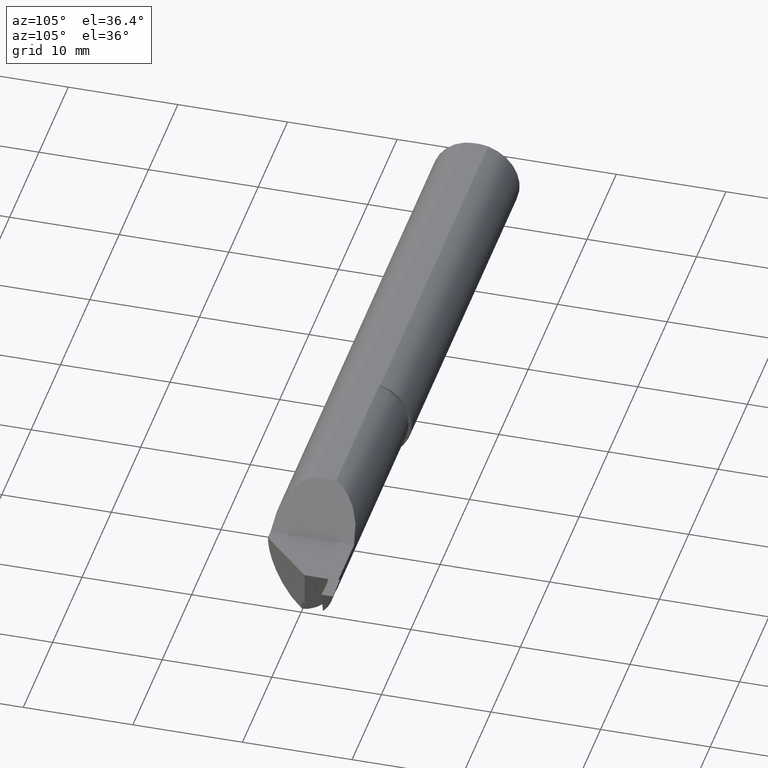
[diagram: clean part render]
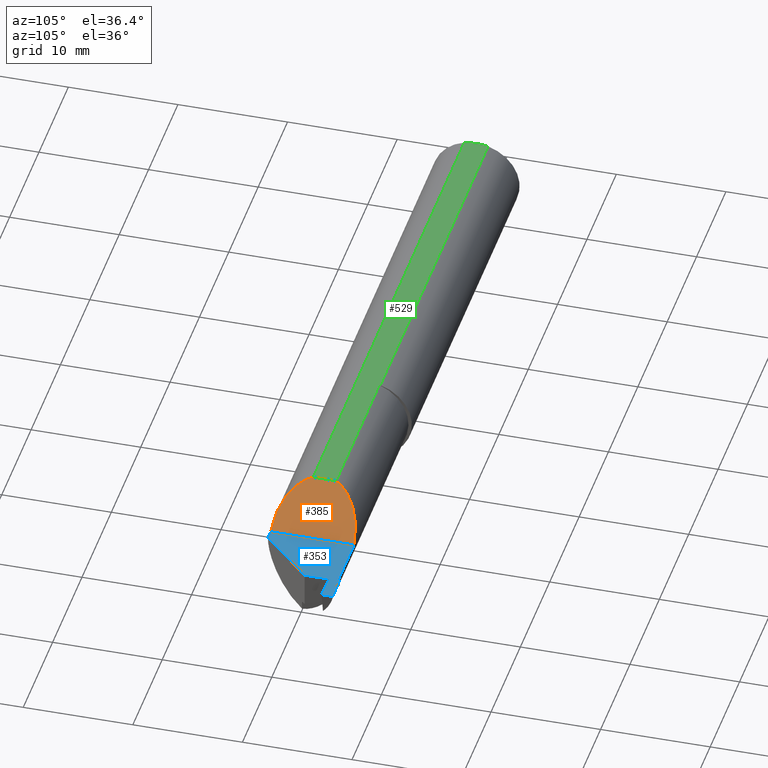
[diagram: same view with three faces highlighted in distinct colors, each labeled with its STEP entity id]
A machine part, auxiliary view with three faces highlighted in distinct colors.
Their STEP definitions:

[orange] entity #385 — the highlighted planar face has unit normal (0.7071, -0, 0.7071).
#8 = CARTESIAN_POINT ( 'NONE',  ( 2.120766287695780239, 0.1440559360311357284, 0.06933371230421984943 ) ) ;
#9 = EDGE_CURVE ( 'NONE', #305, #440, #185, .T. ) ;
#57 = ORIENTED_EDGE ( 'NONE', *, *, #210, .T. ) ;
#82 =( BOUNDED_CURVE ( )  B_SPLINE_CURVE ( 3, ( #401, #8, #714, #396 ),
 .UNSPECIFIED., .F., .F. ) 
 B_SPLINE_CURVE_WITH_KNOTS ( ( 4, 4 ),
 ( 4.713013980425380112, 5.929564525929065688 ),
 .UNSPECIFIED. ) 
 CURVE ( )  GEOMETRIC_REPRESENTATION_ITEM ( )  RATIONAL_B_SPLINE_CURVE ( ( 1.000000000000000000, 0.8804232255846621280, 0.8804232255846621280, 1.000000000000000000 ) ) 
 REPRESENTATION_ITEM ( '' )  );
#108 = DIRECTION ( 'NONE',  ( -0.000000000000000000, 1.000000000000000000, 0.000000000000000000 ) ) ;
#109 = DIRECTION ( 'NONE',  ( 0.000000000000000000, -1.000000000000000000, 0.000000000000000000 ) ) ;
#153 = ORIENTED_EDGE ( 'NONE', *, *, #9, .F. ) ;
#174 = CARTESIAN_POINT ( 'NONE',  ( 2.039999999999999591, 0.04286257108480545641, 0.1500999999999999834 ) ) ;
#184 = CARTESIAN_POINT ( 'NONE',  ( 2.059871508359184311, -0.1124504032942231085, 0.1302284916408148197 ) ) ;
#185 = LINE ( 'NONE', #621, #502 ) ;
#210 = EDGE_CURVE ( 'NONE', #305, #738, #82, .T. ) ;
#302 = DIRECTION ( 'NONE',  ( 0.7071067811865462405, -0.000000000000000000, 0.7071067811865487940 ) ) ;
#305 = VERTEX_POINT ( 'NONE', #544 ) ;
#350 = EDGE_LOOP ( 'NONE', ( #153, #57, #404, #799 ) ) ;
#379 = EDGE_CURVE ( 'NONE', #440, #562, #538, .T. ) ;
#382 = VECTOR ( 'NONE', #108, 39.37007874015748143 ) ;
#385 = ADVANCED_FACE ( 'NONE', ( #437 ), #424, .T. ) ;
#396 = CARTESIAN_POINT ( 'NONE',  ( 2.039999999999999591, 0.03950672882812752973, 0.1500999999999999834 ) ) ;
#401 = CARTESIAN_POINT ( 'NONE',  ( 2.189999999999999947, 0.1440992071097771665, 9.999999999993541345E-05 ) ) ;
#404 = ORIENTED_EDGE ( 'NONE', *, *, #477, .F. ) ;
#424 = PLANE ( 'NONE',  #545 ) ;
#429 = CARTESIAN_POINT ( 'NONE',  ( 2.189999999999999947, -0.1560999679692472164, 9.999999999982123341E-05 ) ) ;
#437 = FACE_OUTER_BOUND ( 'NONE', #350, .T. ) ;
#440 = VERTEX_POINT ( 'NONE', #429 ) ;
#477 = EDGE_CURVE ( 'NONE', #562, #738, #685, .T. ) ;
#502 = VECTOR ( 'NONE', #109, 39.37007874015748143 ) ;
#538 =( BOUNDED_CURVE ( )  B_SPLINE_CURVE ( 3, ( #693, #822, #184, #625 ),
 .UNSPECIFIED., .F., .T. ) 
 B_SPLINE_CURVE_WITH_KNOTS ( ( 4, 4 ),
 ( 4.713029595418896101, 6.005028202575334539 ),
 .UNSPECIFIED. ) 
 CURVE ( )  GEOMETRIC_REPRESENTATION_ITEM ( )  RATIONAL_B_SPLINE_CURVE ( ( 1.000000000000000000, 0.8656657255323875200, 0.8656657255323875200, 1.000000000000000000 ) ) 
 REPRESENTATION_ITEM ( '' )  );
#544 = CARTESIAN_POINT ( 'NONE',  ( 2.189999999999999947, 0.1440992071097771665, 9.999999999993541345E-05 ) ) ;
#545 = AXIS2_PLACEMENT_3D ( 'NONE', #807, #302, #680 ) ;
#562 = VERTEX_POINT ( 'NONE', #574 ) ;
#574 = CARTESIAN_POINT ( 'NONE',  ( 2.039999999999999591, -0.04286257108480545641, 0.1500999999999999834 ) ) ;
#621 = CARTESIAN_POINT ( 'NONE',  ( 2.189999999999999947, -0.04286257108480570621, 9.999999999993541345E-05 ) ) ;
#625 = CARTESIAN_POINT ( 'NONE',  ( 2.039999999999999591, -0.04286257108480545641, 0.1500999999999999834 ) ) ;
#680 = DIRECTION ( 'NONE',  ( 0.7071067811865487940, 0.000000000000000000, -0.7071067811865462405 ) ) ;
#685 = LINE ( 'NONE', #174, #382 ) ;
#693 = CARTESIAN_POINT ( 'NONE',  ( 2.189999999999999947, -0.1560999679692472164, 9.999999999982123341E-05 ) ) ;
#714 = CARTESIAN_POINT ( 'NONE',  ( 2.063975418773851711, 0.1044566178690503194, 0.1261245812261482802 ) ) ;
#725 = CARTESIAN_POINT ( 'NONE',  ( 2.039999999999999591, 0.03950672882812752973, 0.1500999999999999834 ) ) ;
#738 = VERTEX_POINT ( 'NONE', #725 ) ;
#799 = ORIENTED_EDGE ( 'NONE', *, *, #379, .F. ) ;
#807 = CARTESIAN_POINT ( 'NONE',  ( 2.189999999999999947, 0.2560999999999999943, 9.999999999993541345E-05 ) ) ;
#822 = CARTESIAN_POINT ( 'NONE',  ( 2.117630523791210084, -0.1560536069884282118, 0.07246947620879010121 ) ) ;

[blue] entity #353 — the highlighted planar face has unit normal (0, 0, -1).
#3 = CARTESIAN_POINT ( 'NONE',  ( 2.405000000000000249, 0.02390000000000001845, 0.000000000000000000 ) ) ;
#19 = VECTOR ( 'NONE', #241, 39.37007874015748143 ) ;
#21 = FACE_OUTER_BOUND ( 'NONE', #552, .T. ) ;
#22 = VERTEX_POINT ( 'NONE', #755 ) ;
#24 = DIRECTION ( 'NONE',  ( -1.000000000000000000, 0.000000000000000000, -0.000000000000000000 ) ) ;
#34 = VERTEX_POINT ( 'NONE', #630 ) ;
#41 = CARTESIAN_POINT ( 'NONE',  ( 2.405000000000000249, 0.1036166103841832803, 0.000000000000000000 ) ) ;
#46 = ORIENTED_EDGE ( 'NONE', *, *, #674, .F. ) ;
#49 = VECTOR ( 'NONE', #482, 39.37007874015748143 ) ;
#64 = LINE ( 'NONE', #518, #132 ) ;
#66 = CARTESIAN_POINT ( 'NONE',  ( 2.397000000000000242, 0.1470992383597802822, 0.000000000000000000 ) ) ;
#85 = PLANE ( 'NONE',  #451 ) ;
#89 = LINE ( 'NONE', #151, #49 ) ;
#93 = EDGE_CURVE ( 'NONE', #606, #224, #378, .T. ) ;
#95 = ORIENTED_EDGE ( 'NONE', *, *, #659, .F. ) ;
#99 = LINE ( 'NONE', #613, #344 ) ;
#101 = CARTESIAN_POINT ( 'NONE',  ( 2.500000000000000000, 0.1510992383597803135, 3.841661241090370459E-17 ) ) ;
#106 = CARTESIAN_POINT ( 'NONE',  ( 2.413000000000000256, 0.1036166103841832803, 0.000000000000000000 ) ) ;
#132 = VECTOR ( 'NONE', #522, 39.37007874015748143 ) ;
#150 = DIRECTION ( 'NONE',  ( 0.000000000000000000, 0.000000000000000000, 1.000000000000000000 ) ) ;
#151 = CARTESIAN_POINT ( 'NONE',  ( 1.460000000000000187, 0.1440992383597803073, 0.000000000000000000 ) ) ;
#163 = ORIENTED_EDGE ( 'NONE', *, *, #493, .T. ) ;
#188 = CARTESIAN_POINT ( 'NONE',  ( 2.400000000000000355, 0.1470992383597802822, 0.000000000000000000 ) ) ;
#190 = ORIENTED_EDGE ( 'NONE', *, *, #93, .F. ) ;
#195 = DIRECTION ( 'NONE',  ( -0.9998476951563912696, 0.01745240643727517110, -0.000000000000000000 ) ) ;
#206 = LINE ( 'NONE', #400, #438 ) ;
#220 = VERTEX_POINT ( 'NONE', #389 ) ;
#224 = VERTEX_POINT ( 'NONE', #457 ) ;
#230 = DIRECTION ( 'NONE',  ( 0.000000000000000000, 1.000000000000000000, 0.000000000000000000 ) ) ;
#237 = VECTOR ( 'NONE', #195, 39.37007874015748854 ) ;
#241 = DIRECTION ( 'NONE',  ( -0.7071067811865486830, -0.7071067811865464625, 0.000000000000000000 ) ) ;
#255 = CIRCLE ( 'NONE', #468, 0.003000000000000213867 ) ;
#257 = CARTESIAN_POINT ( 'NONE',  ( 2.399999999999999911, 0.1493537318669599934, 0.000000000000000000 ) ) ;
#260 = DIRECTION ( 'NONE',  ( -1.000000000000000000, 0.000000000000000000, 0.000000000000000000 ) ) ;
#266 = CARTESIAN_POINT ( 'NONE',  ( 2.189999999999999947, -0.2560999999999999943, 0.000000000000000000 ) ) ;
#270 = DIRECTION ( 'NONE',  ( 0.000000000000000000, 1.000000000000000000, 0.000000000000000000 ) ) ;
#284 = CARTESIAN_POINT ( 'NONE',  ( 2.189999999999999947, -0.1560999999999999888, 0.000000000000000000 ) ) ;
#289 = ORIENTED_EDGE ( 'NONE', *, *, #697, .F. ) ;
#295 = VERTEX_POINT ( 'NONE', #101 ) ;
#300 = DIRECTION ( 'NONE',  ( 4.086873660734437432E-17, 1.000000000000000000, 0.000000000000000000 ) ) ;
#312 = LINE ( 'NONE', #804, #769 ) ;
#327 = EDGE_CURVE ( 'NONE', #34, #220, #89, .T. ) ;
#344 = VECTOR ( 'NONE', #300, 39.37007874015748143 ) ;
#353 = ADVANCED_FACE ( 'NONE', ( #21 ), #85, .F. ) ;
#358 = VERTEX_POINT ( 'NONE', #284 ) ;
#371 = DIRECTION ( 'NONE',  ( -0.000000000000000000, -0.000000000000000000, 1.000000000000000000 ) ) ;
#372 = VERTEX_POINT ( 'NONE', #569 ) ;
#378 = LINE ( 'NONE', #639, #19 ) ;
#386 = VECTOR ( 'NONE', #526, 39.37007874015748143 ) ;
#389 = CARTESIAN_POINT ( 'NONE',  ( 2.397000000000000242, 0.1440992383597803073, 0.000000000000000000 ) ) ;
#391 = CARTESIAN_POINT ( 'NONE',  ( 2.413139619251498225, 0.1116153919454344334, 0.000000000000000000 ) ) ;
#399 = AXIS2_PLACEMENT_3D ( 'NONE', #106, #150, #722 ) ;
#400 = CARTESIAN_POINT ( 'NONE',  ( 2.405000000000000249, 0.1036166103841832803, 0.000000000000000000 ) ) ;
#425 = ORIENTED_EDGE ( 'NONE', *, *, #629, .F. ) ;
#428 = ORIENTED_EDGE ( 'NONE', *, *, #327, .F. ) ;
#438 = VECTOR ( 'NONE', #701, 39.37007874015748143 ) ;
#445 = LINE ( 'NONE', #266, #520 ) ;
#451 = AXIS2_PLACEMENT_3D ( 'NONE', #665, #603, #24 ) ;
#457 = CARTESIAN_POINT ( 'NONE',  ( 2.224999999999999645, -0.1560999999999999888, 0.000000000000000000 ) ) ;
#468 = AXIS2_PLACEMENT_3D ( 'NONE', #66, #371, #260 ) ;
#474 = VERTEX_POINT ( 'NONE', #188 ) ;
#480 = ORIENTED_EDGE ( 'NONE', *, *, #664, .F. ) ;
#482 = DIRECTION ( 'NONE',  ( 1.000000000000000000, -4.086873660734437432E-17, 0.000000000000000000 ) ) ;
#493 = EDGE_CURVE ( 'NONE', #22, #295, #312, .T. ) ;
#510 = LINE ( 'NONE', #646, #386 ) ;
#518 = CARTESIAN_POINT ( 'NONE',  ( 2.610070508499388708, 0.1530205262323175441, 0.000000000000000000 ) ) ;
#520 = VECTOR ( 'NONE', #270, 39.37007874015748143 ) ;
#521 = ORIENTED_EDGE ( 'NONE', *, *, #592, .F. ) ;
#522 = DIRECTION ( 'NONE',  ( 0.9998476951563914916, 0.01745240643726934937, 0.000000000000000000 ) ) ;
#526 = DIRECTION ( 'NONE',  ( -1.000000000000000000, -0.000000000000000000, -0.000000000000000000 ) ) ;
#552 = EDGE_LOOP ( 'NONE', ( #778, #733, #428, #95, #425, #190, #480, #289, #521, #163, #46 ) ) ;
#569 = CARTESIAN_POINT ( 'NONE',  ( 2.413139705841341964, 0.1116153904340031061, -1.280553747030123384E-17 ) ) ;
#578 = LINE ( 'NONE', #391, #237 ) ;
#592 = EDGE_CURVE ( 'NONE', #22, #372, #578, .T. ) ;
#601 = CIRCLE ( 'NONE', #399, 0.008000000000000024453 ) ;
#603 = DIRECTION ( 'NONE',  ( 0.000000000000000000, 0.000000000000000000, -1.000000000000000000 ) ) ;
#606 = VERTEX_POINT ( 'NONE', #3 ) ;
#613 = CARTESIAN_POINT ( 'NONE',  ( 2.399999999999999911, -0.2560999999999999943, 0.000000000000000000 ) ) ;
#617 = VERTEX_POINT ( 'NONE', #257 ) ;
#629 = EDGE_CURVE ( 'NONE', #224, #358, #510, .T. ) ;
#630 = CARTESIAN_POINT ( 'NONE',  ( 2.189999999999999947, 0.1440992383597802795, 0.000000000000000000 ) ) ;
#639 = CARTESIAN_POINT ( 'NONE',  ( 2.405000000000000249, 0.02390000000000001845, 0.000000000000000000 ) ) ;
#646 = CARTESIAN_POINT ( 'NONE',  ( 0.000000000000000000, -0.1560999999999999888, 0.000000000000000000 ) ) ;
#659 = EDGE_CURVE ( 'NONE', #358, #34, #445, .T. ) ;
#664 = EDGE_CURVE ( 'NONE', #751, #606, #206, .T. ) ;
#665 = CARTESIAN_POINT ( 'NONE',  ( 2.189999999999999947, -0.2560999999999999943, 0.000000000000000000 ) ) ;
#674 = EDGE_CURVE ( 'NONE', #617, #295, #64, .T. ) ;
#697 = EDGE_CURVE ( 'NONE', #372, #751, #601, .T. ) ;
#701 = DIRECTION ( 'NONE',  ( 0.000000000000000000, -1.000000000000000000, 0.000000000000000000 ) ) ;
#722 = DIRECTION ( 'NONE',  ( -1.000000000000000000, 0.000000000000000000, 0.000000000000000000 ) ) ;
#733 = ORIENTED_EDGE ( 'NONE', *, *, #829, .F. ) ;
#751 = VERTEX_POINT ( 'NONE', #41 ) ;
#755 = CARTESIAN_POINT ( 'NONE',  ( 2.500000000000000000, 0.1100992383597803603, 0.000000000000000000 ) ) ;
#757 = EDGE_CURVE ( 'NONE', #474, #617, #99, .T. ) ;
#769 = VECTOR ( 'NONE', #230, 39.37007874015748143 ) ;
#778 = ORIENTED_EDGE ( 'NONE', *, *, #757, .F. ) ;
#804 = CARTESIAN_POINT ( 'NONE',  ( 2.500000000000000000, -0.2560999999999999943, 0.000000000000000000 ) ) ;
#829 = EDGE_CURVE ( 'NONE', #220, #474, #255, .T. ) ;

[green] entity #529 — the highlighted planar face has unit normal (0, 0, -1).
#4 = CARTESIAN_POINT ( 'NONE',  ( 0.01499999999999970281, 0.04286257108480545641, 0.1500999999999999834 ) ) ;
#10 = CARTESIAN_POINT ( 'NONE',  ( 1.460000000000000187, 0.04286257108480545641, 0.1500999999999999834 ) ) ;
#37 = CARTESIAN_POINT ( 'NONE',  ( 0.01308010236197408062, -0.03587054952121924989, 0.1500999999999999834 ) ) ;
#65 = CARTESIAN_POINT ( 'NONE',  ( 0.01158539406439744110, 0.02885992225672986272, 0.1500999999999999834 ) ) ;
#71 = VERTEX_POINT ( 'NONE', #699 ) ;
#74 = LINE ( 'NONE', #268, #354 ) ;
#78 = DIRECTION ( 'NONE',  ( 0.000000000000000000, 0.000000000000000000, -1.000000000000000000 ) ) ;
#81 = DIRECTION ( 'NONE',  ( -1.000000000000000000, -0.000000000000000000, -0.000000000000000000 ) ) ;
#108 = DIRECTION ( 'NONE',  ( -0.000000000000000000, 1.000000000000000000, 0.000000000000000000 ) ) ;
#121 = EDGE_CURVE ( 'NONE', #127, #476, #167, .T. ) ;
#125 = FACE_OUTER_BOUND ( 'NONE', #696, .T. ) ;
#127 = VERTEX_POINT ( 'NONE', #4 ) ;
#130 = EDGE_CURVE ( 'NONE', #298, #738, #591, .T. ) ;
#145 = B_SPLINE_CURVE_WITH_KNOTS ( 'NONE', 3,
 ( #533, #402, #166, #304, #37, #530 ),
 .UNSPECIFIED., .F., .F.,
 ( 4, 2, 4 ),
 ( 0.004962684357525391429, 0.005507153342650035824, 0.006051622327774681086 ),
 .UNSPECIFIED. ) ;
#156 = CARTESIAN_POINT ( 'NONE',  ( 1.460000000000000187, 0.03950672882812750197, 0.1500999999999999834 ) ) ;
#166 = CARTESIAN_POINT ( 'NONE',  ( 0.009526811708237869006, -0.01443825677426632814, 0.1500999999999999834 ) ) ;
#167 = B_SPLINE_CURVE_WITH_KNOTS ( 'NONE', 3,
 ( #430, #687, #65, #575, #421, #652 ),
 .UNSPECIFIED., .F., .F.,
 ( 4, 2, 4 ),
 ( 0.003872957156311482643, 0.004417820756918437036, 0.004962684357525391429 ),
 .UNSPECIFIED. ) ;
#170 = CARTESIAN_POINT ( 'NONE',  ( 0.008999999999998765932, 6.845491512164019265E-17, 0.1500999999999999834 ) ) ;
#172 = CARTESIAN_POINT ( 'NONE',  ( 0.000000000000000000, 0.04286257108480545641, 0.1500999999999999834 ) ) ;
#174 = CARTESIAN_POINT ( 'NONE',  ( 2.039999999999999591, 0.04286257108480545641, 0.1500999999999999834 ) ) ;
#178 = ORIENTED_EDGE ( 'NONE', *, *, #788, .F. ) ;
#196 = DIRECTION ( 'NONE',  ( 1.000000000000000000, -4.086873660734437432E-17, 0.000000000000000000 ) ) ;
#199 = PLANE ( 'NONE',  #797 ) ;
#219 = EDGE_CURVE ( 'NONE', #562, #71, #74, .T. ) ;
#268 = CARTESIAN_POINT ( 'NONE',  ( 0.000000000000000000, -0.04286257108480545641, 0.1500999999999999834 ) ) ;
#291 = ORIENTED_EDGE ( 'NONE', *, *, #477, .T. ) ;
#296 = LINE ( 'NONE', #172, #410 ) ;
#298 = VERTEX_POINT ( 'NONE', #156 ) ;
#304 = CARTESIAN_POINT ( 'NONE',  ( 0.01156122974740472244, -0.02873113156979012484, 0.1500999999999999279 ) ) ;
#325 = DIRECTION ( 'NONE',  ( -1.000000000000000000, 0.000000000000000000, -0.000000000000000000 ) ) ;
#330 = LINE ( 'NONE', #383, #589 ) ;
#346 = ORIENTED_EDGE ( 'NONE', *, *, #121, .T. ) ;
#354 = VECTOR ( 'NONE', #81, 39.37007874015748143 ) ;
#360 = ORIENTED_EDGE ( 'NONE', *, *, #719, .T. ) ;
#368 = ORIENTED_EDGE ( 'NONE', *, *, #563, .F. ) ;
#382 = VECTOR ( 'NONE', #108, 39.37007874015748143 ) ;
#383 = CARTESIAN_POINT ( 'NONE',  ( 1.460000000000000187, -0.2561000000000000498, 0.1500999999999999834 ) ) ;
#402 = CARTESIAN_POINT ( 'NONE',  ( 0.008999999999999465025, -0.007244529225202475144, 0.1500999999999999834 ) ) ;
#410 = VECTOR ( 'NONE', #551, 39.37007874015748143 ) ;
#421 = CARTESIAN_POINT ( 'NONE',  ( 0.008999999999999475433, 0.007249779851909447098, 0.1500999999999999834 ) ) ;
#430 = CARTESIAN_POINT ( 'NONE',  ( 0.01499999999999970281, 0.04286257108480545641, 0.1500999999999999834 ) ) ;
#463 = CARTESIAN_POINT ( 'NONE',  ( 0.000000000000000000, -0.2560999999999999943, 0.1500999999999999834 ) ) ;
#476 = VERTEX_POINT ( 'NONE', #170 ) ;
#477 = EDGE_CURVE ( 'NONE', #562, #738, #685, .T. ) ;
#488 = VECTOR ( 'NONE', #196, 39.37007874015748143 ) ;
#529 = ADVANCED_FACE ( 'NONE', ( #125 ), #199, .F. ) ;
#530 = CARTESIAN_POINT ( 'NONE',  ( 0.01499999999999953107, -0.04286257108480568540, 0.1500999999999999834 ) ) ;
#533 = CARTESIAN_POINT ( 'NONE',  ( 0.008999999999998765932, 6.845491512164019265E-17, 0.1500999999999999834 ) ) ;
#551 = DIRECTION ( 'NONE',  ( 1.000000000000000000, 0.000000000000000000, 0.000000000000000000 ) ) ;
#562 = VERTEX_POINT ( 'NONE', #574 ) ;
#563 = EDGE_CURVE ( 'NONE', #658, #298, #330, .T. ) ;
#574 = CARTESIAN_POINT ( 'NONE',  ( 2.039999999999999591, -0.04286257108480545641, 0.1500999999999999834 ) ) ;
#575 = CARTESIAN_POINT ( 'NONE',  ( 0.009538385840405057964, 0.01455983656044575192, 0.1500999999999999279 ) ) ;
#589 = VECTOR ( 'NONE', #651, 39.37007874015748143 ) ;
#591 = LINE ( 'NONE', #776, #488 ) ;
#619 = ORIENTED_EDGE ( 'NONE', *, *, #219, .F. ) ;
#651 = DIRECTION ( 'NONE',  ( -4.086873660734437432E-17, -1.000000000000000000, 0.000000000000000000 ) ) ;
#652 = CARTESIAN_POINT ( 'NONE',  ( 0.008999999999998765932, 6.845491512164019265E-17, 0.1500999999999999834 ) ) ;
#658 = VERTEX_POINT ( 'NONE', #10 ) ;
#685 = LINE ( 'NONE', #174, #382 ) ;
#687 = CARTESIAN_POINT ( 'NONE',  ( 0.01308967235647840940, 0.03590540221680477151, 0.1500999999999999834 ) ) ;
#696 = EDGE_LOOP ( 'NONE', ( #700, #368, #178, #346, #360, #619, #291 ) ) ;
#699 = CARTESIAN_POINT ( 'NONE',  ( 0.01499999999999953107, -0.04286257108480568540, 0.1500999999999999834 ) ) ;
#700 = ORIENTED_EDGE ( 'NONE', *, *, #130, .F. ) ;
#719 = EDGE_CURVE ( 'NONE', #476, #71, #145, .T. ) ;
#725 = CARTESIAN_POINT ( 'NONE',  ( 2.039999999999999591, 0.03950672882812752973, 0.1500999999999999834 ) ) ;
#738 = VERTEX_POINT ( 'NONE', #725 ) ;
#776 = CARTESIAN_POINT ( 'NONE',  ( 1.460000000000000187, 0.03950672882812778647, 0.1500999999999999834 ) ) ;
#788 = EDGE_CURVE ( 'NONE', #127, #658, #296, .T. ) ;
#797 = AXIS2_PLACEMENT_3D ( 'NONE', #463, #78, #325 ) ;